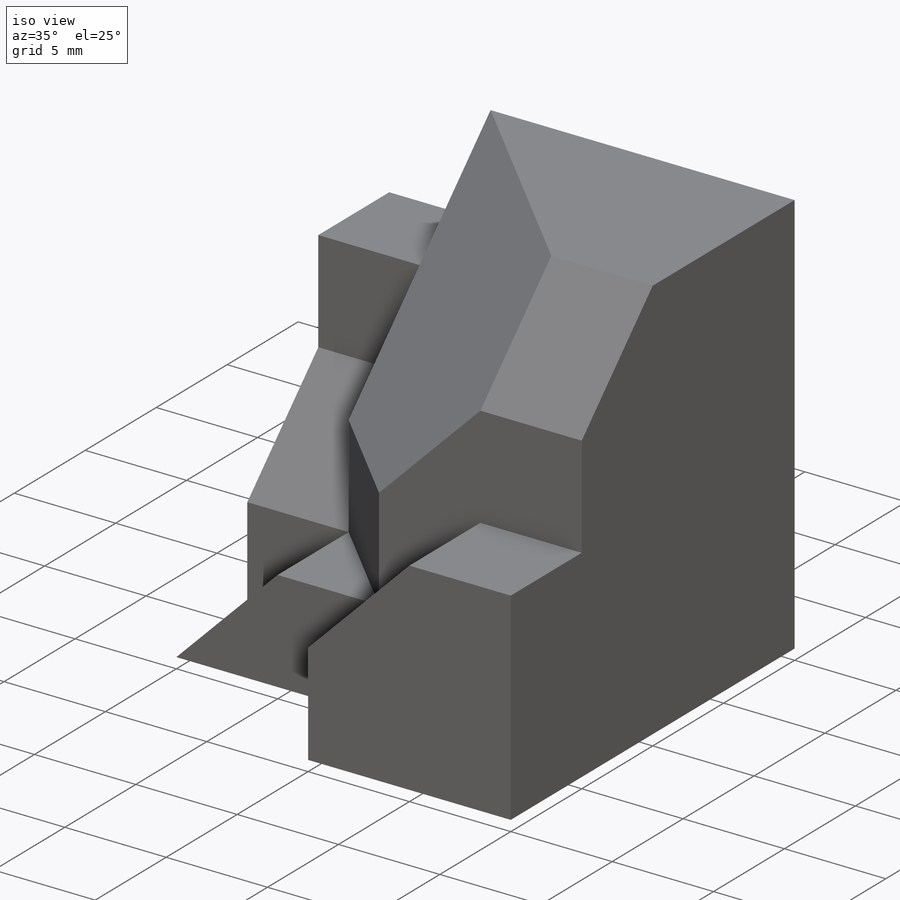
[diagram: iso view]
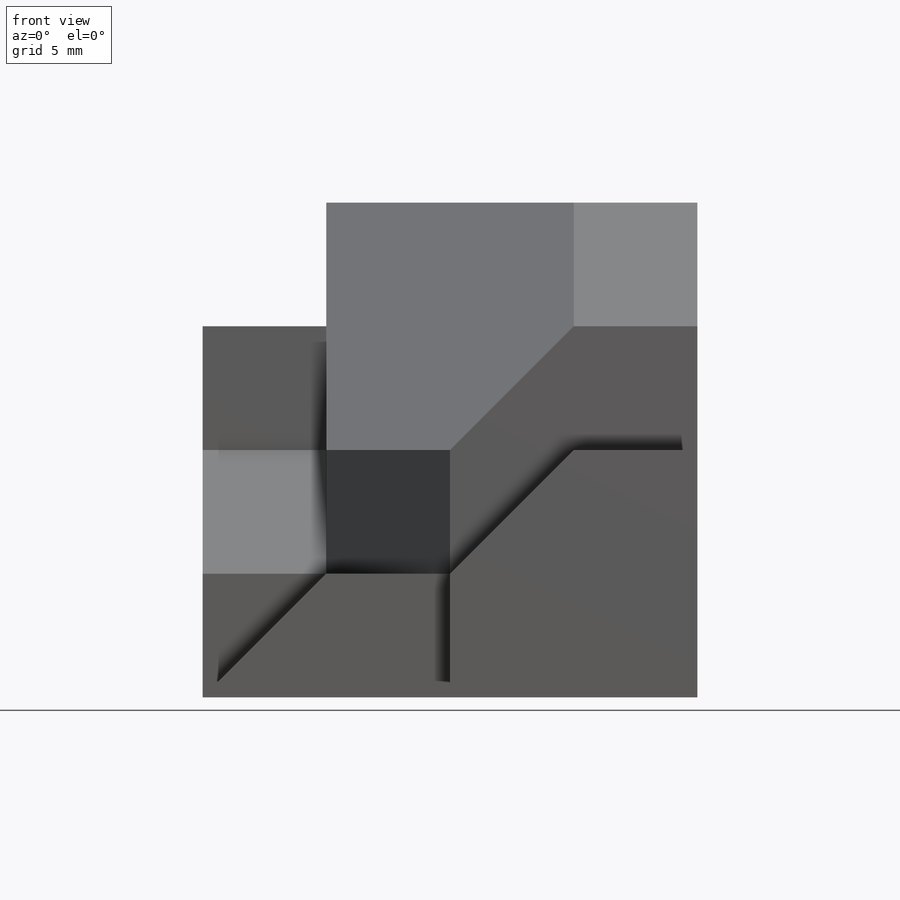
[diagram: front view]
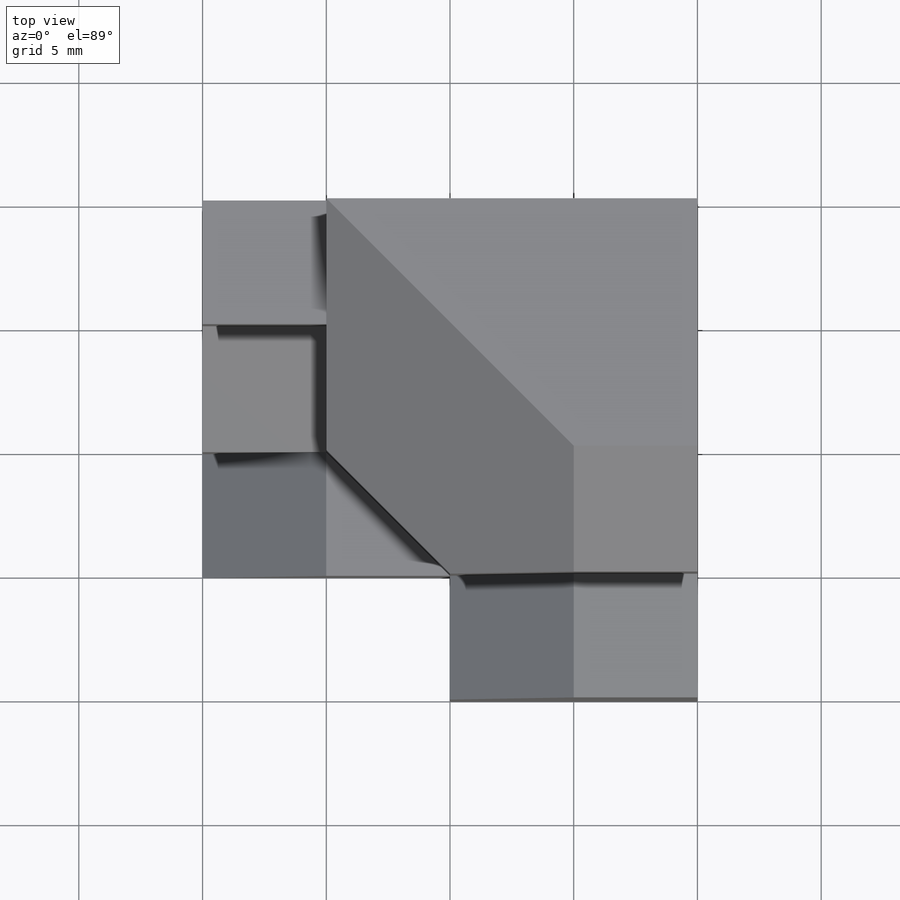
[diagram: top view]
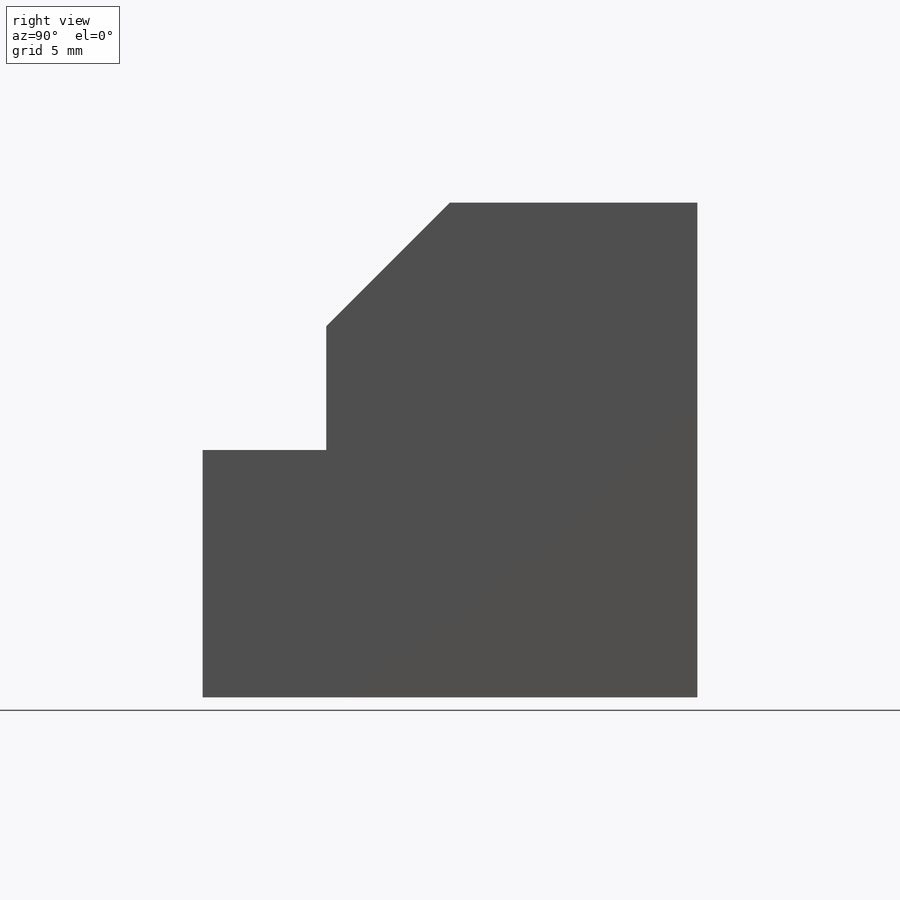
[diagram: right view]
SOLIDWORKS PART (.sldprt)
format: sldprt  version: not decoded by parser v0  size: 237,056 bytes
history: native  units: mm
features: sketch x9, extrude x5, cut_extrude x4, material x1, plane x1 (+13 scaffold rows collapsed)
feature tree (33):
  scaffold x13  (default folders/planes/origin — collapsed)
  material  "Material <not specified>"
  sketch  "Sketch1"  dims[D1=5.0mm D2=5.0mm D3=15.0mm D4=15.0mm]
  extrude  "Boss-Extrude1"  Depth=20mm
  sketch  "Sketch8"  dims[D1=5.0mm D2=10.0mm]
  cut_extrude  "Cut-Extrude5"  Depth=30mm
  plane  "Plane2"
  sketch  "Sketch9"
  extrude  "Boss-Extrude5"  Depth=20mm
  sketch  "3DSketch3"  dims[D1=10.0mm D2=10.0mm D3=5.0mm D4=5.0mm D5=10.0mm D6=10.0mm]
  cut_extrude  "Cut-Extrude9"  Depth=22mm
  sketch  "Sketch11"
  cut_extrude  "Cut-Extrude10"  Depth=22mm
  sketch  "Sketch12"  dims[D1=5.0mm D2=10.0mm D3=5.0mm]
  extrude  "Boss-Extrude6"  Depth=5mm
  sketch  "Sketch13"  dims[c1.D1=10.0mm c1.D2=5.0mm c1.D3=5.0mm c1.D4=5.0mm c1.D5=5.0mm c2.D4=5.0mm c2.D5=10.0mm]
  extrude  "Boss-Extrude7"  Depth=5mm
  sketch  "Sketch14"  dims[D1=10.0mm]
  extrude  "Boss-Extrude8"  Depth=5mm
  sketch  "Sketch15"
  cut_extrude  "Cut-Extrude11"  Depth=5mm
decode coverage: 15 of 18 modeling features carry decoded parameters
note: suppression state not decoded; provenance and decode notes live in map.json
